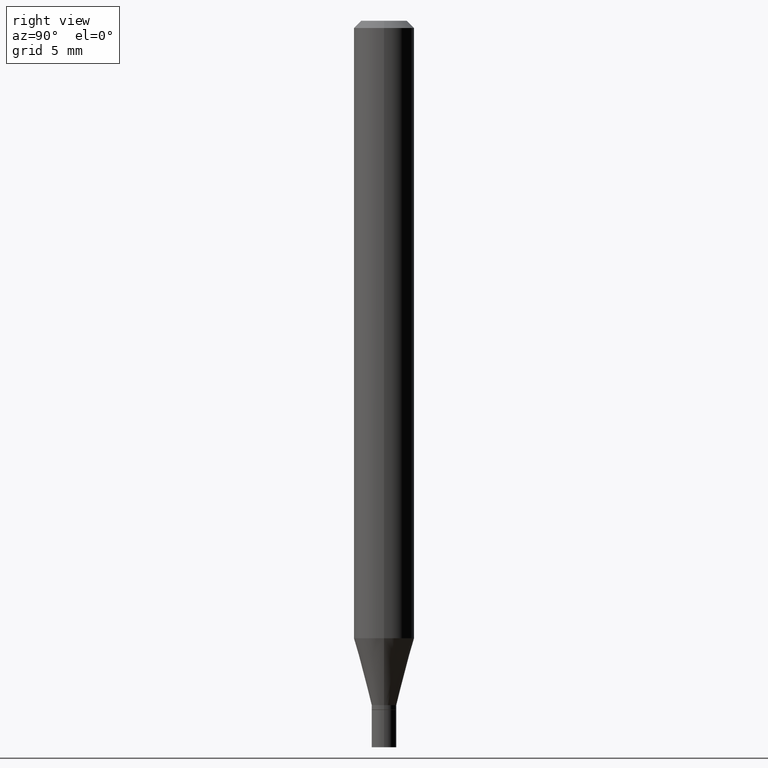
[diagram: clean part render]
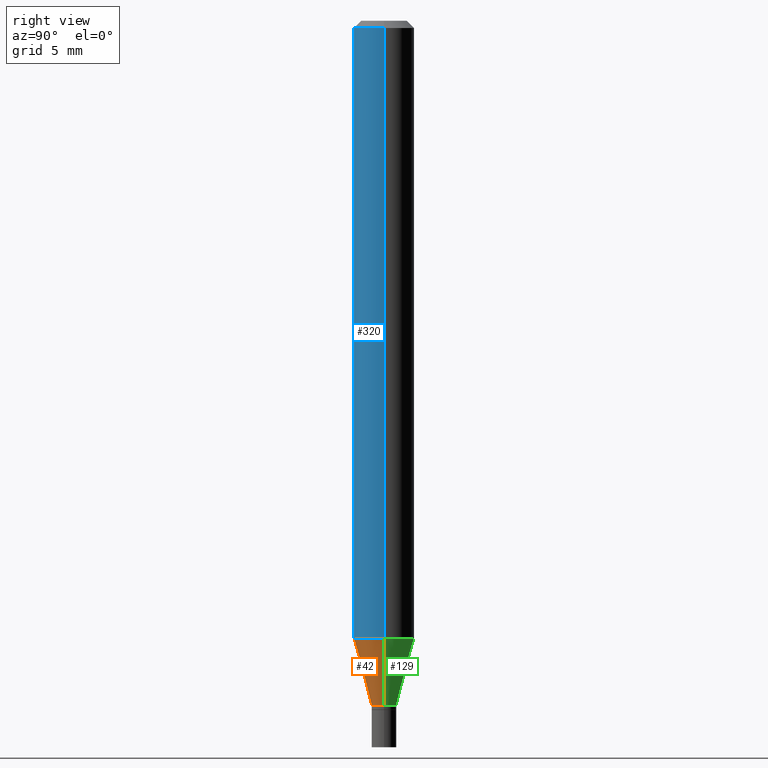
[diagram: same view with three faces highlighted in distinct colors, each labeled with its STEP entity id]
A machine part, right view with three faces highlighted in distinct colors.
Their STEP definitions:

[orange] entity #42 — the highlighted conical surface has half-angle 15 deg.
#6 = CARTESIAN_POINT ( 'NONE',  ( 0.02549999999999992203, -5.111528680066364398E-15, -1.413000000000000256 ) ) ;
#8 = CONICAL_SURFACE ( 'NONE', #338, 0.02549999999999992203, 0.2617993877991499074 ) ;
#10 = DIRECTION ( 'NONE',  ( 0.2588190451025211836, 1.565188264969622559E-15, 0.9659258262890679791 ) ) ;
#12 = FACE_OUTER_BOUND ( 'NONE', #412, .T. ) ;
#22 = CARTESIAN_POINT ( 'NONE',  ( 0.06250000000000000000, -4.887774026381831286E-15, -1.274914120119951644 ) ) ;
#25 = EDGE_CURVE ( 'NONE', #105, #269, #465, .T. ) ;
#32 = ORIENTED_EDGE ( 'NONE', *, *, #453, .F. ) ;
#34 = DIRECTION ( 'NONE',  ( -0.2588190451025211836, 5.211531920934547886E-15, 0.9659258262890679791 ) ) ;
#42 = ADVANCED_FACE ( 'NONE', ( #12 ), #8, .T. ) ;
#46 = VERTEX_POINT ( 'NONE', #6 ) ;
#105 = VERTEX_POINT ( 'NONE', #126 ) ;
#121 = AXIS2_PLACEMENT_3D ( 'NONE', #274, #128, #163 ) ;
#126 = CARTESIAN_POINT ( 'NONE',  ( -0.02549999999999992203, -4.379762191671458599E-15, -1.413000000000000256 ) ) ;
#128 = DIRECTION ( 'NONE',  ( -2.445468806185136597E-29, 3.491481338843145583E-15, 1.000000000000000000 ) ) ;
#154 = CARTESIAN_POINT ( 'NONE',  ( -0.06250000000000000000, -4.007249649176377790E-15, -1.274914120119951644 ) ) ;
#163 = DIRECTION ( 'NONE',  ( 1.000000000000000000, -6.982962677686262766E-15, 0.000000000000000000 ) ) ;
#183 = AXIS2_PLACEMENT_3D ( 'NONE', #193, #267, #225 ) ;
#188 = DIRECTION ( 'NONE',  ( -2.445468806185136597E-29, 3.491481338843145583E-15, 1.000000000000000000 ) ) ;
#193 = CARTESIAN_POINT ( 'NONE',  ( 3.455447423139598357E-29, -4.933463131785365512E-15, -1.413000000000000256 ) ) ;
#225 = DIRECTION ( 'NONE',  ( 1.000000000000000000, -6.982962677686258822E-15, 0.000000000000000000 ) ) ;
#227 = VECTOR ( 'NONE', #10, 39.37007874015748854 ) ;
#259 = ORIENTED_EDGE ( 'NONE', *, *, #25, .F. ) ;
#267 = DIRECTION ( 'NONE',  ( -2.445468806185136597E-29, 3.491481338843145583E-15, 1.000000000000000000 ) ) ;
#269 = VERTEX_POINT ( 'NONE', #154 ) ;
#274 = CARTESIAN_POINT ( 'NONE',  ( 3.117762711318311949E-29, -4.451338859026439617E-15, -1.274914120119951644 ) ) ;
#275 = EDGE_CURVE ( 'NONE', #105, #46, #377, .T. ) ;
#285 = EDGE_CURVE ( 'NONE', #46, #444, #435, .T. ) ;
#305 = ORIENTED_EDGE ( 'NONE', *, *, #275, .T. ) ;
#335 = DIRECTION ( 'NONE',  ( 1.000000000000000000, -6.982962677686258822E-15, 0.000000000000000000 ) ) ;
#338 = AXIS2_PLACEMENT_3D ( 'NONE', #413, #188, #335 ) ;
#366 = CARTESIAN_POINT ( 'NONE',  ( -0.02549999999999992203, -4.752274734166540987E-15, -1.413000000000000256 ) ) ;
#377 = CIRCLE ( 'NONE', #183, 0.02549999999999992203 ) ;
#412 = EDGE_LOOP ( 'NONE', ( #259, #305, #418, #32 ) ) ;
#413 = CARTESIAN_POINT ( 'NONE',  ( 3.455447423139598357E-29, -4.933463131785365512E-15, -1.413000000000000256 ) ) ;
#418 = ORIENTED_EDGE ( 'NONE', *, *, #285, .T. ) ;
#435 = LINE ( 'NONE', #437, #227 ) ;
#436 = CIRCLE ( 'NONE', #121, 0.06250000000000000000 ) ;
#437 = CARTESIAN_POINT ( 'NONE',  ( 0.02549999999999992203, -5.111528680066364398E-15, -1.413000000000000256 ) ) ;
#444 = VERTEX_POINT ( 'NONE', #22 ) ;
#453 = EDGE_CURVE ( 'NONE', #269, #444, #436, .T. ) ;
#455 = VECTOR ( 'NONE', #34, 39.37007874015748854 ) ;
#465 = LINE ( 'NONE', #366, #455 ) ;

[blue] entity #320 — the highlighted cylindrical surface (edge-blend (fillet) strip) has radius 1.5875 mm, axis along (-0, 0, 1).
#15 = VERTEX_POINT ( 'NONE', #395 ) ;
#22 = CARTESIAN_POINT ( 'NONE',  ( 0.06250000000000000000, -4.887774026381831286E-15, -1.274914120119951644 ) ) ;
#48 = ORIENTED_EDGE ( 'NONE', *, *, #279, .T. ) ;
#72 = ORIENTED_EDGE ( 'NONE', *, *, #243, .F. ) ;
#78 = DIRECTION ( 'NONE',  ( 1.000000000000000000, -6.982962677686266711E-15, 0.000000000000000000 ) ) ;
#82 = DIRECTION ( 'NONE',  ( -2.445468806185136877E-29, 3.491481338843145188E-15, 1.000000000000000000 ) ) ;
#112 = CARTESIAN_POINT ( 'NONE',  ( 0.06250000000000000000, -4.364351673553916694E-16, 3.047610484872459871E-30 ) ) ;
#113 = FACE_OUTER_BOUND ( 'NONE', #408, .T. ) ;
#121 = AXIS2_PLACEMENT_3D ( 'NONE', #274, #128, #163 ) ;
#128 = DIRECTION ( 'NONE',  ( -2.445468806185136597E-29, 3.491481338843145583E-15, 1.000000000000000000 ) ) ;
#133 = VECTOR ( 'NONE', #297, 39.37007874015748143 ) ;
#154 = CARTESIAN_POINT ( 'NONE',  ( -0.06250000000000000000, -4.007249649176377790E-15, -1.274914120119951644 ) ) ;
#163 = DIRECTION ( 'NONE',  ( 1.000000000000000000, -6.982962677686262766E-15, 0.000000000000000000 ) ) ;
#184 = LINE ( 'NONE', #112, #133 ) ;
#192 = CIRCLE ( 'NONE', #340, 0.06250000000000000000 ) ;
#198 = CARTESIAN_POINT ( 'NONE',  ( -0.06250000000000000000, 4.440892098500626162E-16, -3.074334431409316114E-30 ) ) ;
#234 = LINE ( 'NONE', #198, #349 ) ;
#239 = CARTESIAN_POINT ( 'NONE',  ( -0.06250000000000000000, -1.807766329704480929E-15, -0.01499999999999999944 ) ) ;
#243 = EDGE_CURVE ( 'NONE', #269, #439, #234, .T. ) ;
#247 = ORIENTED_EDGE ( 'NONE', *, *, #268, .F. ) ;
#260 = ORIENTED_EDGE ( 'NONE', *, *, #453, .T. ) ;
#268 = EDGE_CURVE ( 'NONE', #439, #15, #192, .T. ) ;
#269 = VERTEX_POINT ( 'NONE', #154 ) ;
#274 = CARTESIAN_POINT ( 'NONE',  ( 3.117762711318311949E-29, -4.451338859026439617E-15, -1.274914120119951644 ) ) ;
#278 = CARTESIAN_POINT ( 'NONE',  ( 0.000000000000000000, 0.000000000000000000, 0.000000000000000000 ) ) ;
#279 = EDGE_CURVE ( 'NONE', #444, #15, #184, .T. ) ;
#294 = CARTESIAN_POINT ( 'NONE',  ( 3.668203209277705088E-31, -5.237222008264718399E-17, -0.01499999999999999944 ) ) ;
#297 = DIRECTION ( 'NONE',  ( -2.445468806185136877E-29, 3.491481338843145188E-15, 1.000000000000000000 ) ) ;
#306 = DIRECTION ( 'NONE',  ( 1.000000000000000000, -6.982962677686266711E-15, 4.876176775795935793E-29 ) ) ;
#311 = AXIS2_PLACEMENT_3D ( 'NONE', #278, #419, #306 ) ;
#320 = ADVANCED_FACE ( 'NONE', ( #113 ), #372, .T. ) ;
#340 = AXIS2_PLACEMENT_3D ( 'NONE', #294, #432, #78 ) ;
#349 = VECTOR ( 'NONE', #82, 39.37007874015748143 ) ;
#372 = CYLINDRICAL_SURFACE ( 'NONE', #311, 0.06250000000000000000 ) ;
#395 = CARTESIAN_POINT ( 'NONE',  ( 0.06250000000000000000, -4.888073874380388472E-16, -0.01499999999999999944 ) ) ;
#408 = EDGE_LOOP ( 'NONE', ( #72, #260, #48, #247 ) ) ;
#419 = DIRECTION ( 'NONE',  ( -2.445468806185136597E-29, 3.491481338843145583E-15, 1.000000000000000000 ) ) ;
#432 = DIRECTION ( 'NONE',  ( -2.445468806185136597E-29, 3.491481338843145583E-15, 1.000000000000000000 ) ) ;
#436 = CIRCLE ( 'NONE', #121, 0.06250000000000000000 ) ;
#439 = VERTEX_POINT ( 'NONE', #239 ) ;
#444 = VERTEX_POINT ( 'NONE', #22 ) ;
#453 = EDGE_CURVE ( 'NONE', #269, #444, #436, .T. ) ;

[green] entity #129 — the highlighted conical surface has half-angle 15 deg.
#6 = CARTESIAN_POINT ( 'NONE',  ( 0.02549999999999992203, -5.111528680066364398E-15, -1.413000000000000256 ) ) ;
#10 = DIRECTION ( 'NONE',  ( 0.2588190451025211836, 1.565188264969622559E-15, 0.9659258262890679791 ) ) ;
#22 = CARTESIAN_POINT ( 'NONE',  ( 0.06250000000000000000, -4.887774026381831286E-15, -1.274914120119951644 ) ) ;
#25 = EDGE_CURVE ( 'NONE', #105, #269, #465, .T. ) ;
#34 = DIRECTION ( 'NONE',  ( -0.2588190451025211836, 5.211531920934547886E-15, 0.9659258262890679791 ) ) ;
#40 = ORIENTED_EDGE ( 'NONE', *, *, #25, .T. ) ;
#46 = VERTEX_POINT ( 'NONE', #6 ) ;
#58 = EDGE_CURVE ( 'NONE', #46, #105, #100, .T. ) ;
#100 = CIRCLE ( 'NONE', #429, 0.02549999999999992203 ) ;
#105 = VERTEX_POINT ( 'NONE', #126 ) ;
#126 = CARTESIAN_POINT ( 'NONE',  ( -0.02549999999999992203, -4.379762191671458599E-15, -1.413000000000000256 ) ) ;
#129 = ADVANCED_FACE ( 'NONE', ( #283 ), #264, .T. ) ;
#154 = CARTESIAN_POINT ( 'NONE',  ( -0.06250000000000000000, -4.007249649176377790E-15, -1.274914120119951644 ) ) ;
#165 = ORIENTED_EDGE ( 'NONE', *, *, #285, .F. ) ;
#166 = DIRECTION ( 'NONE',  ( -2.445468806185136597E-29, 3.491481338843145583E-15, 1.000000000000000000 ) ) ;
#176 = CIRCLE ( 'NONE', #456, 0.06250000000000000000 ) ;
#197 = CARTESIAN_POINT ( 'NONE',  ( 3.455447423139598357E-29, -4.933463131785365512E-15, -1.413000000000000256 ) ) ;
#201 = ORIENTED_EDGE ( 'NONE', *, *, #442, .F. ) ;
#227 = VECTOR ( 'NONE', #10, 39.37007874015748854 ) ;
#263 = DIRECTION ( 'NONE',  ( 1.000000000000000000, -6.982962677686258822E-15, 0.000000000000000000 ) ) ;
#264 = CONICAL_SURFACE ( 'NONE', #325, 0.02549999999999992203, 0.2617993877991499074 ) ;
#269 = VERTEX_POINT ( 'NONE', #154 ) ;
#272 = DIRECTION ( 'NONE',  ( 1.000000000000000000, -6.982962677686262766E-15, 0.000000000000000000 ) ) ;
#276 = ORIENTED_EDGE ( 'NONE', *, *, #58, .T. ) ;
#283 = FACE_OUTER_BOUND ( 'NONE', #461, .T. ) ;
#285 = EDGE_CURVE ( 'NONE', #46, #444, #435, .T. ) ;
#316 = DIRECTION ( 'NONE',  ( -2.445468806185136597E-29, 3.491481338843145583E-15, 1.000000000000000000 ) ) ;
#325 = AXIS2_PLACEMENT_3D ( 'NONE', #422, #166, #263 ) ;
#344 = DIRECTION ( 'NONE',  ( -2.445468806185136597E-29, 3.491481338843145583E-15, 1.000000000000000000 ) ) ;
#366 = CARTESIAN_POINT ( 'NONE',  ( -0.02549999999999992203, -4.752274734166540987E-15, -1.413000000000000256 ) ) ;
#416 = DIRECTION ( 'NONE',  ( 1.000000000000000000, -6.982962677686258822E-15, 0.000000000000000000 ) ) ;
#422 = CARTESIAN_POINT ( 'NONE',  ( 3.455447423139598357E-29, -4.933463131785365512E-15, -1.413000000000000256 ) ) ;
#429 = AXIS2_PLACEMENT_3D ( 'NONE', #197, #344, #416 ) ;
#435 = LINE ( 'NONE', #437, #227 ) ;
#437 = CARTESIAN_POINT ( 'NONE',  ( 0.02549999999999992203, -5.111528680066364398E-15, -1.413000000000000256 ) ) ;
#442 = EDGE_CURVE ( 'NONE', #444, #269, #176, .T. ) ;
#444 = VERTEX_POINT ( 'NONE', #22 ) ;
#446 = CARTESIAN_POINT ( 'NONE',  ( 3.117762711318311949E-29, -4.451338859026439617E-15, -1.274914120119951644 ) ) ;
#455 = VECTOR ( 'NONE', #34, 39.37007874015748854 ) ;
#456 = AXIS2_PLACEMENT_3D ( 'NONE', #446, #316, #272 ) ;
#461 = EDGE_LOOP ( 'NONE', ( #276, #40, #201, #165 ) ) ;
#465 = LINE ( 'NONE', #366, #455 ) ;